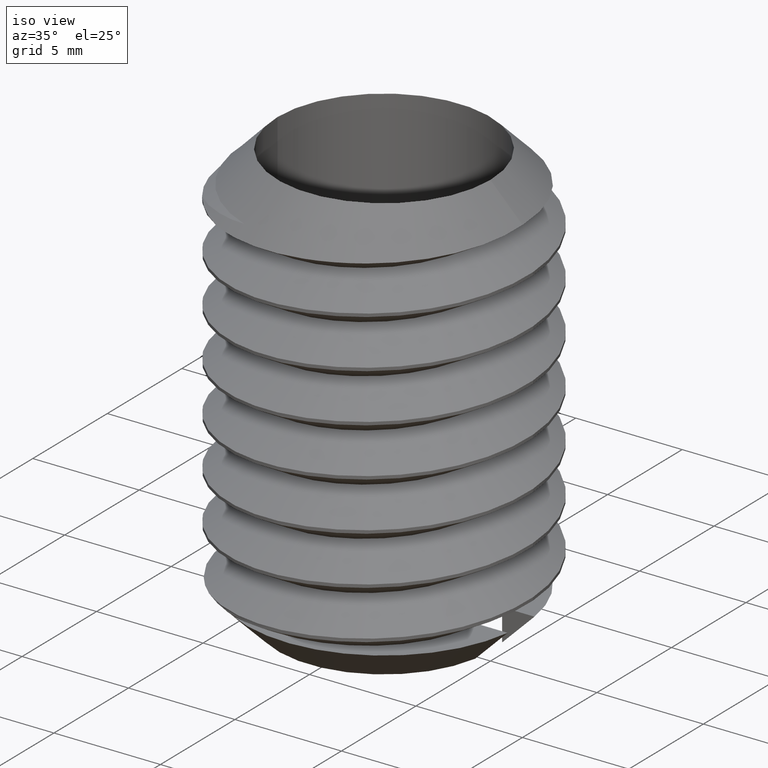
[diagram: clean part render]
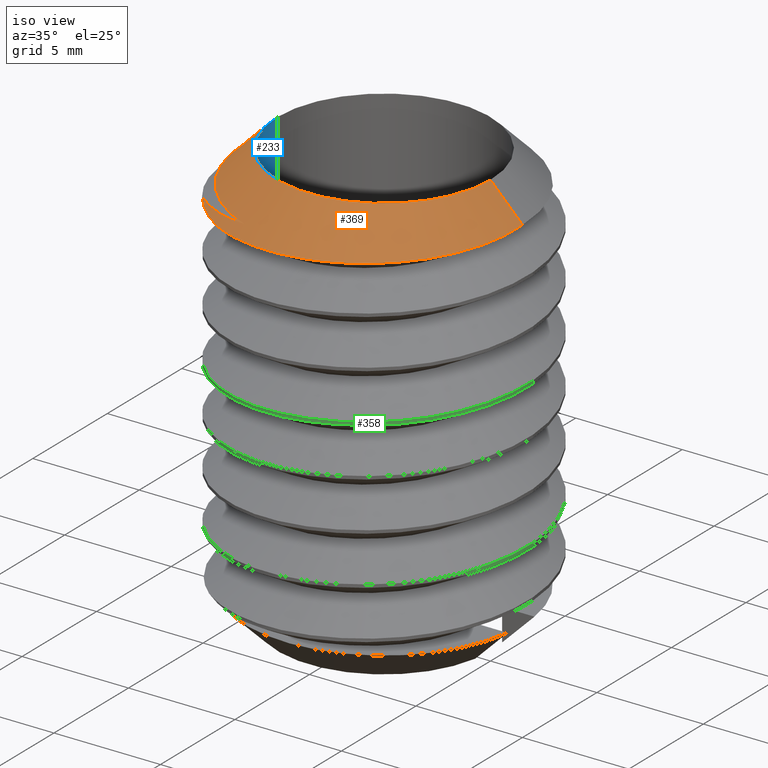
[diagram: same view with three faces highlighted in distinct colors, each labeled with its STEP entity id]
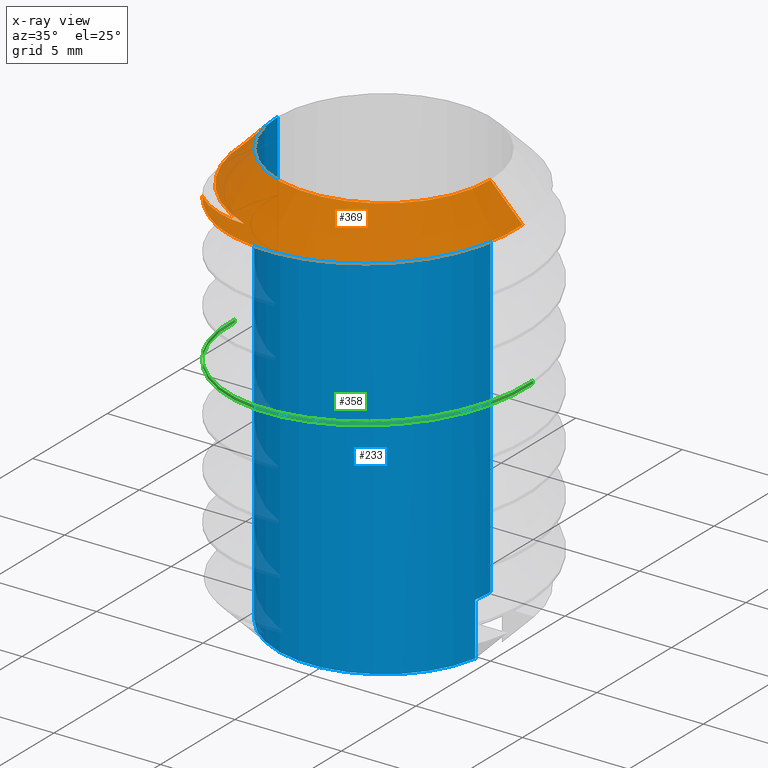
[diagram: x-ray of the same camera — body ghosted, the three highlighted faces saturated]
A machine part, iso view with three faces highlighted in distinct colors.
The next image is the same camera in x-ray (body ghosted, the three faces saturated) — at least one of them is partly hidden behind the body in this view.
Their STEP definitions:

[orange] entity #369 — the highlighted conical surface has half-angle 45 deg.
#84 = CIRCLE ( 'NONE', #342, 5.000000000000000000 ) ;
#93 = LINE ( 'NONE', #1483, #94 ) ;
#94 = VECTOR ( 'NONE', #1484, 1000.000000000000000 ) ;
#95 = LINE ( 'NONE', #1498, #97 ) ;
#97 = VECTOR ( 'NONE', #1499, 1000.000000000000000 ) ;
#134 = CIRCLE ( 'NONE', #379, 6.499999999999978700 ) ;
#138 = CIRCLE ( 'NONE', #381, 6.999999999999999100 ) ;
#170 = FACE_OUTER_BOUND ( 'NONE', #375, .T. ) ;
#171 = CONICAL_SURFACE ( 'NONE', #398, 4.999999999999964500, 0.7853981633974530500 ) ;
#219 = B_SPLINE_CURVE_WITH_KNOTS ( 'NONE', 3,
 ( #937, #938, #939, #940, #941, #942, #943, #944, #945, #946, #947, #948, #949, #950, #951, #952, #953, #954, #955, #956, #957, #958, #959, #960, #961, #962, #963, #964, #965 ),
 .UNSPECIFIED., .F., .F.,
 ( 4, 2, 2, 2, 2, 1, 2, 2, 2, 2, 2, 2, 2, 2, 4 ),
 ( 0.0002103929179776574000, 0.001999516395274256700, 0.002894078133922556200, 0.003788639872570856200, 0.004683201611219156600, 0.005577763349867457400, 0.006472325088515758200, 0.007366886827164058200, 0.008261448565812358100, 0.009156010304460660700, 0.01094513378175726200, 0.01183969552040556300, 0.01273425725905386400, 0.01362881899770216300, 0.01452338073635046600 ),
 .UNSPECIFIED. ) ;
#249 = EDGE_CURVE ( 'NONE', #1095, #1152, #84, .T. ) ;
#266 = EDGE_CURVE ( 'NONE', #1149, #1121, #1232, .T. ) ;
#269 = EDGE_CURVE ( 'NONE', #1152, #1134, #93, .T. ) ;
#272 = EDGE_CURVE ( 'NONE', #1095, #1142, #95, .T. ) ;
#323 = EDGE_CURVE ( 'NONE', #1121, #1134, #134, .T. ) ;
#327 = EDGE_CURVE ( 'NONE', #1130, #1149, #138, .T. ) ;
#342 = AXIS2_PLACEMENT_3D ( 'NONE', #1316, #1384, #1317 ) ;
#369 = ADVANCED_FACE ( 'NONE', ( #170 ), #171, .T. ) ;
#375 = EDGE_LOOP ( 'NONE', ( #2167, #2163, #1205, #1206, #1207, #1208, #1209 ) ) ;
#379 = AXIS2_PLACEMENT_3D ( 'NONE', #1756, #1757, #1758 ) ;
#381 = AXIS2_PLACEMENT_3D ( 'NONE', #1768, #1769, #1770 ) ;
#398 = AXIS2_PLACEMENT_3D ( 'NONE', #903, #904, #905 ) ;
#903 = CARTESIAN_POINT ( 'NONE',  ( 0.0000000000000000000, 0.0000000000000000000, 0.0000000000000000000 ) ) ;
#904 = DIRECTION ( 'NONE',  ( 0.0000000000000000000, 0.0000000000000000000, -1.000000000000000000 ) ) ;
#905 = DIRECTION ( 'NONE',  ( -1.000000000000000000, 0.0000000000000000000, 0.0000000000000000000 ) ) ;
#937 = CARTESIAN_POINT ( 'NONE',  ( 6.506944958466514900, 1.606024264505477500E-011, -1.506944958466536600 ) ) ;
#938 = CARTESIAN_POINT ( 'NONE',  ( 6.526392543186277700, -0.6012619652855369900, -1.526392543184812400 ) ) ;
#939 = CARTESIAN_POINT ( 'NONE',  ( 6.465103244246140700, -1.194123424497150800, -1.546922083583916600 ) ) ;
#940 = CARTESIAN_POINT ( 'NONE',  ( 6.252083230710448800, -2.070819986596531800, -1.579248791072174900 ) ) ;
#941 = CARTESIAN_POINT ( 'NONE',  ( 6.160639609903219200, -2.359392304396059200, -1.590233121785960000 ) ) ;
#942 = CARTESIAN_POINT ( 'NONE',  ( 5.942222764083190600, -2.915207123203083400, -1.612065040476790700 ) ) ;
#943 = CARTESIAN_POINT ( 'NONE',  ( 5.814785470221038600, -3.184550983587202600, -1.622989399894805700 ) ) ;
#944 = CARTESIAN_POINT ( 'NONE',  ( 5.523411891717692000, -3.706092243508929000, -1.644854565927269800 ) ) ;
#945 = CARTESIAN_POINT ( 'NONE',  ( 5.358046810112344200, -3.960078001421319300, -1.655877218916976100 ) ) ;
#946 = CARTESIAN_POINT ( 'NONE',  ( 4.996448315426934400, -4.440121116690519000, -1.677498742509469400 ) ) ;
#947 = CARTESIAN_POINT ( 'NONE',  ( 4.605542691093582200, -4.891419824655980800, -1.698644686321411100 ) ) ;
#948 = CARTESIAN_POINT ( 'NONE',  ( 4.157505151080276700, -5.286682591370125200, -1.718884202137007400 ) ) ;
#949 = CARTESIAN_POINT ( 'NONE',  ( 3.680047097131539300, -5.653088494757283500, -1.738671915536078400 ) ) ;
#950 = CARTESIAN_POINT ( 'NONE',  ( 3.427915970988164600, -5.820187127697931100, -1.748040889996974600 ) ) ;
#951 = CARTESIAN_POINT ( 'NONE',  ( 2.909428912943234900, -6.116922540360239000, -1.767007293607119700 ) ) ;
#952 = CARTESIAN_POINT ( 'NONE',  ( 2.641548238252407400, -6.247882534809590100, -1.776765849953623400 ) ) ;
#953 = CARTESIAN_POINT ( 'NONE',  ( 2.088468880865674800, -6.474900035826430600, -1.796820937879265400 ) ) ;
#954 = CARTESIAN_POINT ( 'NONE',  ( 1.801124097339263000, -6.571450189182444400, -1.807194428302461900 ) ) ;
#955 = CARTESIAN_POINT ( 'NONE',  ( 0.9299002643683096400, -6.801527323580594400, -1.838497639265853400 ) ) ;
#956 = CARTESIAN_POINT ( 'NONE',  ( 0.3389092827935438200, -6.877455703676500500, -1.859538834987839900 ) ) ;
#957 = CARTESIAN_POINT ( 'NONE',  ( -0.5628766383924523900, -6.874887107278704300, -1.891346529565370600 ) ) ;
#958 = CARTESIAN_POINT ( 'NONE',  ( -0.8649201048607499900, -6.854042696174075500, -1.901950431793807800 ) ) ;
#959 = CARTESIAN_POINT ( 'NONE',  ( -1.456803042311531500, -6.774194221049410400, -1.922637802366708600 ) ) ;
#960 = CARTESIAN_POINT ( 'NONE',  ( -1.748782562616655500, -6.715234040865793100, -1.932796876917063100 ) ) ;
#961 = CARTESIAN_POINT ( 'NONE',  ( -2.324836937823858000, -6.559335750036734900, -1.952756009731421400 ) ) ;
#962 = CARTESIAN_POINT ( 'NONE',  ( -2.610017192121549400, -6.461926388031288900, -1.962593995738843600 ) ) ;
#963 = CARTESIAN_POINT ( 'NONE',  ( -3.166959152010053700, -6.229438078705328500, -1.981730574070986500 ) ) ;
#964 = CARTESIAN_POINT ( 'NONE',  ( -3.436717505859276000, -6.095145199371745400, -1.990751139494457000 ) ) ;
#965 = CARTESIAN_POINT ( 'NONE',  ( -3.698044061280030300, -5.943439250201140400, -2.000000000000016000 ) ) ;
#986 = CARTESIAN_POINT ( 'NONE',  ( 4.999999999999999100, 7.347880794884123700E-016, 0.0000000000000000000 ) ) ;
#1011 = CARTESIAN_POINT ( 'NONE',  ( -2.305317674866649700, -6.077459207427649400, -1.499999999999999100 ) ) ;
#1019 = CARTESIAN_POINT ( 'NONE',  ( -3.698044061280030300, -5.943439250201140400, -2.000000000000016000 ) ) ;
#1023 = CARTESIAN_POINT ( 'NONE',  ( -6.499999999999978700, 0.0000000000000000000, -1.500000000000000000 ) ) ;
#1030 = CARTESIAN_POINT ( 'NONE',  ( 6.506944958466514900, 1.606024264505477500E-011, -1.506944958466536600 ) ) ;
#1036 = CARTESIAN_POINT ( 'NONE',  ( -5.706117880068423400, -4.054653960421705800, -2.000000000000014700 ) ) ;
#1039 = CARTESIAN_POINT ( 'NONE',  ( -5.000000000000000000, 0.0000000000000000000, 0.0000000000000000000 ) ) ;
#1067 = EDGE_CURVE ( 'NONE', #1142, #1130, #219, .T. ) ;
#1095 = VERTEX_POINT ( 'NONE', #986 ) ;
#1121 = VERTEX_POINT ( 'NONE', #1011 ) ;
#1130 = VERTEX_POINT ( 'NONE', #1019 ) ;
#1134 = VERTEX_POINT ( 'NONE', #1023 ) ;
#1142 = VERTEX_POINT ( 'NONE', #1030 ) ;
#1149 = VERTEX_POINT ( 'NONE', #1036 ) ;
#1152 = VERTEX_POINT ( 'NONE', #1039 ) ;
#1205 = ORIENTED_EDGE ( 'NONE', *, *, #269, .T. ) ;
#1206 = ORIENTED_EDGE ( 'NONE', *, *, #323, .F. ) ;
#1207 = ORIENTED_EDGE ( 'NONE', *, *, #266, .F. ) ;
#1208 = ORIENTED_EDGE ( 'NONE', *, *, #327, .F. ) ;
#1209 = ORIENTED_EDGE ( 'NONE', *, *, #1067, .F. ) ;
#1232 = B_SPLINE_CURVE_WITH_KNOTS ( 'NONE', 3,
 ( #1432, #1381, #1455, #1288, #1299, #1293, #1462, #1313 ),
 .UNSPECIFIED., .F., .F.,
 ( 4, 2, 2, 4 ),
 ( 0.0000000000000000000, 0.002008921170697491200, 0.003013381756046236800, 0.004017842341394982400 ),
 .UNSPECIFIED. ) ;
#1288 = CARTESIAN_POINT ( 'NONE',  ( -3.872147165748886200, -5.483974465955367500, -1.705025009710511100 ) ) ;
#1293 = CARTESIAN_POINT ( 'NONE',  ( -2.951841342649728100, -5.895861079838735600, -1.585126729073712800 ) ) ;
#1299 = CARTESIAN_POINT ( 'NONE',  ( -3.569975030238732700, -5.637401682256980400, -1.664410573836938600 ) ) ;
#1313 = CARTESIAN_POINT ( 'NONE',  ( -2.305317674866649700, -6.077459207427649400, -1.499999999999999100 ) ) ;
#1316 = CARTESIAN_POINT ( 'NONE',  ( 0.0000000000000000000, 0.0000000000000000000, 0.0000000000000000000 ) ) ;
#1317 = DIRECTION ( 'NONE',  ( -1.000000000000000000, 0.0000000000000000000, 0.0000000000000000000 ) ) ;
#1381 = CARTESIAN_POINT ( 'NONE',  ( -5.248774135763946800, -4.549456726173827000, -1.913799525295906400 ) ) ;
#1384 = DIRECTION ( 'NONE',  ( 0.0000000000000000000, 0.0000000000000000000, -1.000000000000000000 ) ) ;
#1432 = CARTESIAN_POINT ( 'NONE',  ( -5.706117880068423400, -4.054653960421705800, -2.000000000000014700 ) ) ;
#1455 = CARTESIAN_POINT ( 'NONE',  ( -4.732610919136602600, -4.967961360108458500, -1.829179251195846000 ) ) ;
#1462 = CARTESIAN_POINT ( 'NONE',  ( -2.633375985036771700, -5.999668827689552200, -1.543617040188228300 ) ) ;
#1483 = CARTESIAN_POINT ( 'NONE',  ( -4.999999999999964500, 0.0000000000000000000, 0.0000000000000000000 ) ) ;
#1484 = DIRECTION ( 'NONE',  ( -0.7071067811865507900, 0.0000000000000000000, -0.7071067811865441300 ) ) ;
#1498 = CARTESIAN_POINT ( 'NONE',  ( 4.999999999999964500, 6.123233995736722900E-016, 0.0000000000000000000 ) ) ;
#1499 = DIRECTION ( 'NONE',  ( 0.7071067811865507900, 8.659560562354974800E-017, -0.7071067811865441300 ) ) ;
#1756 = CARTESIAN_POINT ( 'NONE',  ( 0.0000000000000000000, 0.0000000000000000000, -1.500000000000000000 ) ) ;
#1757 = DIRECTION ( 'NONE',  ( -0.0000000000000000000, -0.0000000000000000000, -1.000000000000000000 ) ) ;
#1758 = DIRECTION ( 'NONE',  ( 1.000000000000000000, 8.881784197001252300E-016, 0.0000000000000000000 ) ) ;
#1768 = CARTESIAN_POINT ( 'NONE',  ( 0.0000000000000000000, 0.0000000000000000000, -2.000000000000015500 ) ) ;
#1769 = DIRECTION ( 'NONE',  ( 0.0000000000000000000, 0.0000000000000000000, -1.000000000000000000 ) ) ;
#1770 = DIRECTION ( 'NONE',  ( 1.000000000000000000, 0.0000000000000000000, 0.0000000000000000000 ) ) ;
#2163 = ORIENTED_EDGE ( 'NONE', *, *, #249, .T. ) ;
#2167 = ORIENTED_EDGE ( 'NONE', *, *, #272, .F. ) ;

[blue] entity #233 — the highlighted cylindrical surface (partial cylindrical patch) has radius 5 mm, axis along (-0, -0, -1).
#7 = EDGE_LOOP ( 'NONE', ( #1156, #1157, #1154, #1155, #1158, #1159, #1160, #1161 ) ) ;
#64 = FACE_OUTER_BOUND ( 'NONE', #7, .T. ) ;
#65 = CYLINDRICAL_SURFACE ( 'NONE', #338, 5.000000000000000000 ) ;
#84 = CIRCLE ( 'NONE', #342, 5.000000000000000000 ) ;
#85 = CIRCLE ( 'NONE', #343, 5.000000000000000000 ) ;
#87 = LINE ( 'NONE', #1419, #89 ) ;
#89 = VECTOR ( 'NONE', #1374, 1000.000000000000000 ) ;
#90 = LINE ( 'NONE', #1481, #92 ) ;
#92 = VECTOR ( 'NONE', #1482, 1000.000000000000000 ) ;
#98 = LINE ( 'NONE', #1534, #100 ) ;
#99 = CIRCLE ( 'NONE', #348, 5.000000000000000000 ) ;
#100 = VECTOR ( 'NONE', #1535, 1000.000000000000000 ) ;
#107 = CIRCLE ( 'NONE', #378, 5.000000000000000000 ) ;
#117 = LINE ( 'NONE', #1687, #118 ) ;
#118 = VECTOR ( 'NONE', #1688, 1000.000000000000000 ) ;
#233 = ADVANCED_FACE ( 'NONE', ( #64 ), #65, .F. ) ;
#249 = EDGE_CURVE ( 'NONE', #1095, #1152, #84, .T. ) ;
#254 = EDGE_CURVE ( 'NONE', #1096, #1136, #85, .T. ) ;
#260 = EDGE_CURVE ( 'NONE', #1096, #1111, #87, .T. ) ;
#268 = EDGE_CURVE ( 'NONE', #1152, #1091, #90, .T. ) ;
#276 = EDGE_CURVE ( 'NONE', #1091, #1087, #99, .T. ) ;
#278 = EDGE_CURVE ( 'NONE', #1089, #1087, #98, .T. ) ;
#295 = EDGE_CURVE ( 'NONE', #1111, #1089, #107, .T. ) ;
#307 = EDGE_CURVE ( 'NONE', #1095, #1136, #117, .T. ) ;
#338 = AXIS2_PLACEMENT_3D ( 'NONE', #2240, #2286, #2272 ) ;
#342 = AXIS2_PLACEMENT_3D ( 'NONE', #1316, #1384, #1317 ) ;
#343 = AXIS2_PLACEMENT_3D ( 'NONE', #1449, #1375, #1314 ) ;
#348 = AXIS2_PLACEMENT_3D ( 'NONE', #1515, #1516, #1517 ) ;
#378 = AXIS2_PLACEMENT_3D ( 'NONE', #1632, #1633, #1634 ) ;
#978 = CARTESIAN_POINT ( 'NONE',  ( -4.918333050943175500, -0.9000000000000000200, -17.50000000000000000 ) ) ;
#980 = CARTESIAN_POINT ( 'NONE',  ( -4.918333050943175500, -0.9000000000000000200, -20.00000000000000000 ) ) ;
#982 = CARTESIAN_POINT ( 'NONE',  ( -5.000000000000000000, 0.0000000000000000000, -17.50000000000000000 ) ) ;
#986 = CARTESIAN_POINT ( 'NONE',  ( 4.999999999999999100, 7.347880794884123700E-016, 0.0000000000000000000 ) ) ;
#987 = CARTESIAN_POINT ( 'NONE',  ( 4.918333050943175500, -0.9000000000000000200, -17.50000000000000000 ) ) ;
#1001 = CARTESIAN_POINT ( 'NONE',  ( 4.918333050943175500, -0.9000000000000000200, -20.00000000000000000 ) ) ;
#1025 = CARTESIAN_POINT ( 'NONE',  ( 5.000000000000000000, 6.123233995736766300E-016, -17.50000000000000000 ) ) ;
#1039 = CARTESIAN_POINT ( 'NONE',  ( -5.000000000000000000, 0.0000000000000000000, 0.0000000000000000000 ) ) ;
#1087 = VERTEX_POINT ( 'NONE', #978 ) ;
#1089 = VERTEX_POINT ( 'NONE', #980 ) ;
#1091 = VERTEX_POINT ( 'NONE', #982 ) ;
#1095 = VERTEX_POINT ( 'NONE', #986 ) ;
#1096 = VERTEX_POINT ( 'NONE', #987 ) ;
#1111 = VERTEX_POINT ( 'NONE', #1001 ) ;
#1136 = VERTEX_POINT ( 'NONE', #1025 ) ;
#1152 = VERTEX_POINT ( 'NONE', #1039 ) ;
#1154 = ORIENTED_EDGE ( 'NONE', *, *, #254, .F. ) ;
#1155 = ORIENTED_EDGE ( 'NONE', *, *, #260, .T. ) ;
#1156 = ORIENTED_EDGE ( 'NONE', *, *, #249, .F. ) ;
#1157 = ORIENTED_EDGE ( 'NONE', *, *, #307, .T. ) ;
#1158 = ORIENTED_EDGE ( 'NONE', *, *, #295, .T. ) ;
#1159 = ORIENTED_EDGE ( 'NONE', *, *, #278, .T. ) ;
#1160 = ORIENTED_EDGE ( 'NONE', *, *, #276, .F. ) ;
#1161 = ORIENTED_EDGE ( 'NONE', *, *, #268, .F. ) ;
#1314 = DIRECTION ( 'NONE',  ( -1.000000000000000000, 7.105427357601001900E-015, 0.0000000000000000000 ) ) ;
#1316 = CARTESIAN_POINT ( 'NONE',  ( 0.0000000000000000000, 0.0000000000000000000, 0.0000000000000000000 ) ) ;
#1317 = DIRECTION ( 'NONE',  ( -1.000000000000000000, 0.0000000000000000000, 0.0000000000000000000 ) ) ;
#1374 = DIRECTION ( 'NONE',  ( -0.0000000000000000000, -0.0000000000000000000, -1.000000000000000000 ) ) ;
#1375 = DIRECTION ( 'NONE',  ( 0.0000000000000000000, 0.0000000000000000000, 1.000000000000000000 ) ) ;
#1384 = DIRECTION ( 'NONE',  ( 0.0000000000000000000, 0.0000000000000000000, -1.000000000000000000 ) ) ;
#1419 = CARTESIAN_POINT ( 'NONE',  ( 4.918333050943175500, -0.9000000000000000200, 0.0000000000000000000 ) ) ;
#1449 = CARTESIAN_POINT ( 'NONE',  ( 0.0000000000000000000, 0.0000000000000000000, -17.50000000000000000 ) ) ;
#1481 = CARTESIAN_POINT ( 'NONE',  ( -5.000000000000000000, 0.0000000000000000000, 0.0000000000000000000 ) ) ;
#1482 = DIRECTION ( 'NONE',  ( -0.0000000000000000000, -0.0000000000000000000, -1.000000000000000000 ) ) ;
#1515 = CARTESIAN_POINT ( 'NONE',  ( 0.0000000000000000000, 0.0000000000000000000, -17.50000000000000000 ) ) ;
#1516 = DIRECTION ( 'NONE',  ( 0.0000000000000000000, 0.0000000000000000000, 1.000000000000000000 ) ) ;
#1517 = DIRECTION ( 'NONE',  ( -1.000000000000000000, 0.0000000000000000000, 0.0000000000000000000 ) ) ;
#1534 = CARTESIAN_POINT ( 'NONE',  ( -4.918333050943175500, -0.9000000000000000200, 0.0000000000000000000 ) ) ;
#1535 = DIRECTION ( 'NONE',  ( 0.0000000000000000000, 0.0000000000000000000, 1.000000000000000000 ) ) ;
#1632 = CARTESIAN_POINT ( 'NONE',  ( 0.0000000000000000000, 0.0000000000000000000, -20.00000000000000000 ) ) ;
#1633 = DIRECTION ( 'NONE',  ( 0.0000000000000000000, 0.0000000000000000000, -1.000000000000000000 ) ) ;
#1634 = DIRECTION ( 'NONE',  ( -1.000000000000000000, 0.0000000000000000000, 0.0000000000000000000 ) ) ;
#1687 = CARTESIAN_POINT ( 'NONE',  ( 5.000000000000000000, 6.123233995736766300E-016, 0.0000000000000000000 ) ) ;
#1688 = DIRECTION ( 'NONE',  ( -0.0000000000000000000, -0.0000000000000000000, -1.000000000000000000 ) ) ;
#2240 = CARTESIAN_POINT ( 'NONE',  ( 0.0000000000000000000, 0.0000000000000000000, 0.0000000000000000000 ) ) ;
#2272 = DIRECTION ( 'NONE',  ( -1.000000000000000000, 0.0000000000000000000, 0.0000000000000000000 ) ) ;
#2286 = DIRECTION ( 'NONE',  ( -0.0000000000000000000, -0.0000000000000000000, -1.000000000000000000 ) ) ;

[green] entity #358 — the highlighted cylindrical surface (partial cylindrical patch) has radius 7 mm, axis along (0, 0, 1).
#31 = ORIENTED_EDGE ( 'NONE', *, *, #281, .F. ) ;
#32 = ORIENTED_EDGE ( 'NONE', *, *, #282, .F. ) ;
#35 = ORIENTED_EDGE ( 'NONE', *, *, #296, .T. ) ;
#36 = ORIENTED_EDGE ( 'NONE', *, *, #303, .F. ) ;
#106 = LINE ( 'NONE', #1635, #108 ) ;
#108 = VECTOR ( 'NONE', #1636, 1000.000000000000000 ) ;
#113 = LINE ( 'NONE', #1669, #114 ) ;
#114 = VECTOR ( 'NONE', #1670, 1000.000000000000000 ) ;
#154 = FACE_OUTER_BOUND ( 'NONE', #377, .T. ) ;
#155 = CYLINDRICAL_SURFACE ( 'NONE', #390, 6.999999999999999100 ) ;
#281 = EDGE_CURVE ( 'NONE', #1148, #1116, #2313, .T. ) ;
#282 = EDGE_CURVE ( 'NONE', #1092, #1093, #2334, .T. ) ;
#296 = EDGE_CURVE ( 'NONE', #1092, #1116, #106, .T. ) ;
#303 = EDGE_CURVE ( 'NONE', #1093, #1148, #113, .T. ) ;
#358 = ADVANCED_FACE ( 'NONE', ( #154 ), #155, .T. ) ;
#377 = EDGE_LOOP ( 'NONE', ( #36, #32, #35, #31 ) ) ;
#390 = AXIS2_PLACEMENT_3D ( 'NONE', #1795, #1796, #1797 ) ;
#983 = CARTESIAN_POINT ( 'NONE',  ( 6.999999999999999100, 2.096719583698234600E-013, -8.122279497512668200 ) ) ;
#984 = CARTESIAN_POINT ( 'NONE',  ( -6.999999999999999100, -2.105292111292266100E-013, -9.272279497512666800 ) ) ;
#1006 = CARTESIAN_POINT ( 'NONE',  ( 6.999999999999999100, 2.096719583698235100E-013, -7.977720502487279900 ) ) ;
#1035 = CARTESIAN_POINT ( 'NONE',  ( -6.999999999999999100, -2.105292111292266600E-013, -9.127720502487276700 ) ) ;
#1092 = VERTEX_POINT ( 'NONE', #983 ) ;
#1093 = VERTEX_POINT ( 'NONE', #984 ) ;
#1116 = VERTEX_POINT ( 'NONE', #1006 ) ;
#1148 = VERTEX_POINT ( 'NONE', #1035 ) ;
#1550 = CARTESIAN_POINT ( 'NONE',  ( -6.999999999999999100, -2.105292111292266600E-013, -9.127720502487276700 ) ) ;
#1551 = CARTESIAN_POINT ( 'NONE',  ( -6.999999999999876500, -4.041451884327591900, -8.936053835820610300 ) ) ;
#1552 = CARTESIAN_POINT ( 'NONE',  ( -3.499999999999816100, -6.062177826491175200, -8.744387169153943900 ) ) ;
#1553 = CARTESIAN_POINT ( 'NONE',  ( 2.426032583240721900E-013, -8.082903768654759300, -8.552720502487277400 ) ) ;
#1554 = CARTESIAN_POINT ( 'NONE',  ( 3.500000000000181600, -6.062177826490964700, -8.361053835820612800 ) ) ;
#1555 = CARTESIAN_POINT ( 'NONE',  ( 7.000000000000120800, -4.041451884327169200, -8.169387169153946400 ) ) ;
#1556 = CARTESIAN_POINT ( 'NONE',  ( 6.999999999999999100, 2.096719583698235100E-013, -7.977720502487279900 ) ) ;
#1557 = CARTESIAN_POINT ( 'NONE',  ( 6.999999999999999100, 2.096719583698234600E-013, -8.122279497512668200 ) ) ;
#1558 = CARTESIAN_POINT ( 'NONE',  ( 7.000000000000135900, -4.041451884327160300, -8.313946164179334600 ) ) ;
#1559 = CARTESIAN_POINT ( 'NONE',  ( 3.500000000000181600, -6.062177826490965600, -8.505612830846002800 ) ) ;
#1560 = CARTESIAN_POINT ( 'NONE',  ( 2.426032583240721900E-013, -8.082903768654761100, -8.697279497512669300 ) ) ;
#1561 = CARTESIAN_POINT ( 'NONE',  ( -3.499999999999816100, -6.062177826491175200, -8.888946164179333900 ) ) ;
#1562 = CARTESIAN_POINT ( 'NONE',  ( -6.999999999999878300, -4.041451884327592800, -9.080612830846002100 ) ) ;
#1563 = CARTESIAN_POINT ( 'NONE',  ( -6.999999999999999100, -2.105292111292266100E-013, -9.272279497512666800 ) ) ;
#1635 = CARTESIAN_POINT ( 'NONE',  ( 6.999999999999999100, 0.0000000000000000000, -20.00000000000000000 ) ) ;
#1636 = DIRECTION ( 'NONE',  ( 0.0000000000000000000, 0.0000000000000000000, 1.000000000000000000 ) ) ;
#1669 = CARTESIAN_POINT ( 'NONE',  ( -6.999999999999999100, 8.572527594031472200E-016, -20.00000000000000000 ) ) ;
#1670 = DIRECTION ( 'NONE',  ( 0.0000000000000000000, 0.0000000000000000000, 1.000000000000000000 ) ) ;
#1795 = CARTESIAN_POINT ( 'NONE',  ( 0.0000000000000000000, 0.0000000000000000000, -20.00000000000000000 ) ) ;
#1796 = DIRECTION ( 'NONE',  ( 0.0000000000000000000, 0.0000000000000000000, 1.000000000000000000 ) ) ;
#1797 = DIRECTION ( 'NONE',  ( 1.000000000000000000, 0.0000000000000000000, 0.0000000000000000000 ) ) ;
#2313 =( BOUNDED_CURVE ( )  B_SPLINE_CURVE ( 2, ( #1550, #1551, #1552, #1553, #1554, #1555, #1556 ),
 .UNSPECIFIED., .F., .F. ) 
 B_SPLINE_CURVE_WITH_KNOTS ( ( 3, 2, 2, 3 ),
 ( 0.5909090909090908300, 0.6060606060606060800, 0.6212121212121212200, 0.6363636363636363500 ),
 .UNSPECIFIED. ) 
 CURVE ( )  GEOMETRIC_REPRESENTATION_ITEM ( )  RATIONAL_B_SPLINE_CURVE ( ( 1.000000000000000000, 0.8660254037844387100, 1.000000000000000000, 0.8660254037844387100, 1.000000000000000000, 0.8660254037844387100, 1.000000000000000000 ) ) 
 REPRESENTATION_ITEM ( '' )  );
#2334 =( BOUNDED_CURVE ( )  B_SPLINE_CURVE ( 2, ( #1557, #1558, #1559, #1560, #1561, #1562, #1563 ),
 .UNSPECIFIED., .F., .F. ) 
 B_SPLINE_CURVE_WITH_KNOTS ( ( 3, 2, 2, 3 ),
 ( 0.4545454545454544700, 0.4696969696969696700, 0.4848484848484848600, 0.5000000000000000000 ),
 .UNSPECIFIED. ) 
 CURVE ( )  GEOMETRIC_REPRESENTATION_ITEM ( )  RATIONAL_B_SPLINE_CURVE ( ( 1.000000000000000400, 0.8660254037844380400, 1.000000000000000000, 0.8660254037844386000, 1.000000000000000000, 0.8660254037844386000, 1.000000000000000000 ) ) 
 REPRESENTATION_ITEM ( '' )  );